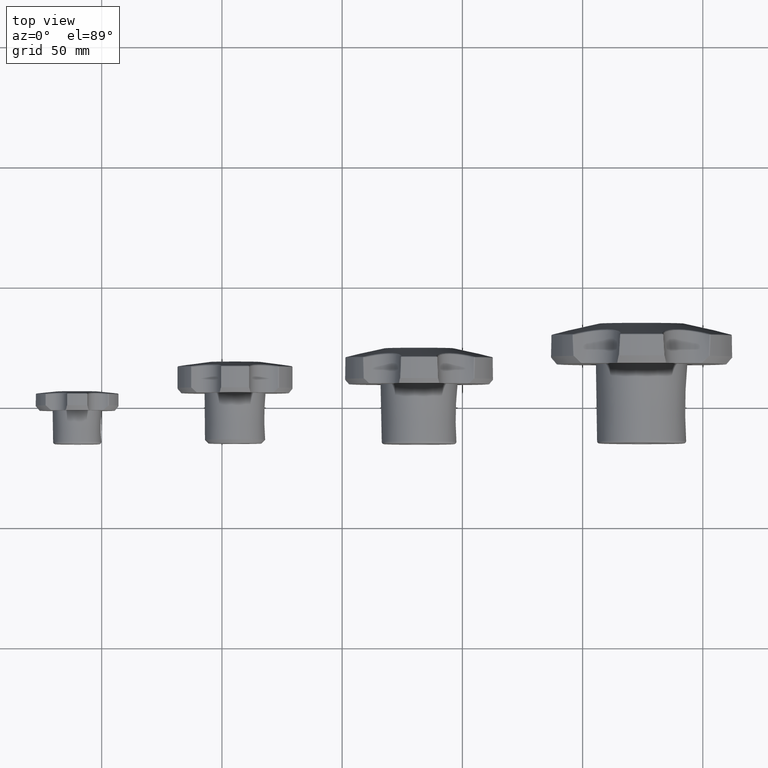
[diagram: clean part render]
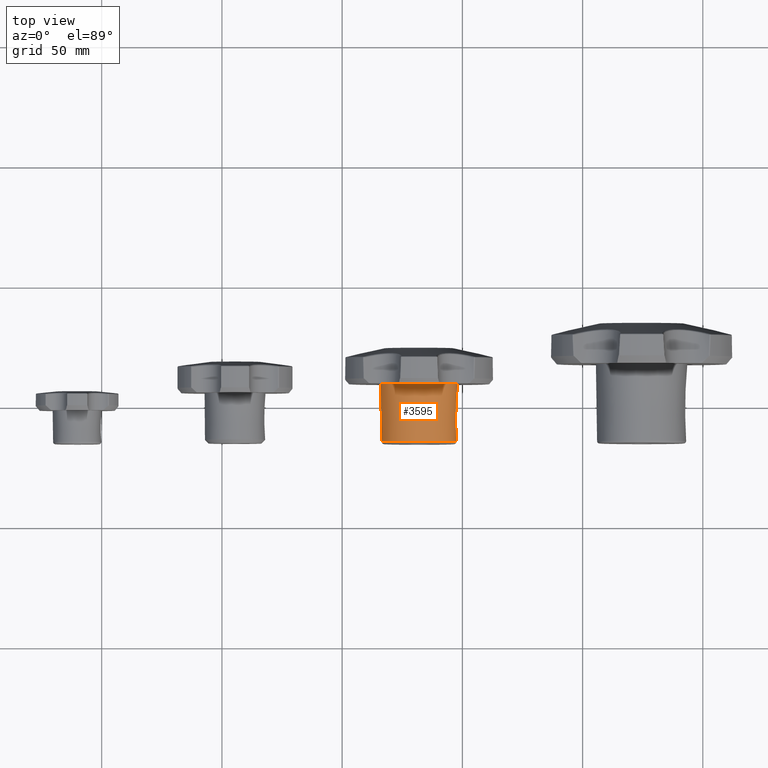
[diagram: same view with one face highlighted and labeled with its STEP entity id]
A machine part, top view. The second image highlights one B-rep face of the part: STEP entity #3595.
In plain terms, the highlighted conical surface has half-angle 1.146 deg.
Its self-contained STEP definition (entity closure, byte-faithful):
#531=CONICAL_SURFACE('',#4045,16.,1.1457628381751);
#580=FACE_BOUND('',#1061,.T.);
#780=FACE_OUTER_BOUND('',#1060,.T.);
#1060=EDGE_LOOP('',(#3095));
#1061=EDGE_LOOP('',(#3096));
#1359=CIRCLE('',#4034,16.);
#1361=CIRCLE('',#4042,15.519600079976);
#1675=VERTEX_POINT('',#7776);
#1677=VERTEX_POINT('',#7786);
#2159=EDGE_CURVE('',#1675,#1675,#1359,.T.);
#2161=EDGE_CURVE('',#1677,#1677,#1361,.T.);
#3095=ORIENTED_EDGE('',*,*,#2159,.F.);
#3096=ORIENTED_EDGE('',*,*,#2161,.F.);
#3595=ADVANCED_FACE('',(#780,#580),#531,.T.);
#4034=AXIS2_PLACEMENT_3D('',#7777,#4952,#4953);
#4042=AXIS2_PLACEMENT_3D('',#7787,#4968,#4969);
#4045=AXIS2_PLACEMENT_3D('',#7791,#4974,#4975);
#4952=DIRECTION('center_axis',(0.,1.,0.));
#4953=DIRECTION('ref_axis',(-1.,0.,0.));
#4968=DIRECTION('center_axis',(0.,-1.,0.));
#4969=DIRECTION('ref_axis',(1.,0.,1.22464679914735E-16));
#4974=DIRECTION('center_axis',(0.,1.,0.));
#4975=DIRECTION('ref_axis',(-1.,0.,0.));
#7776=CARTESIAN_POINT('',(-16.,0.,0.));
#7777=CARTESIAN_POINT('Origin',(0.,0.,0.));
#7786=CARTESIAN_POINT('',(-15.519600079976,-24.0199960011996,-3.80120571239793E-15));
#7787=CARTESIAN_POINT('Origin',(0.,-24.0199960011996,0.));
#7791=CARTESIAN_POINT('Origin',(0.,0.,0.));